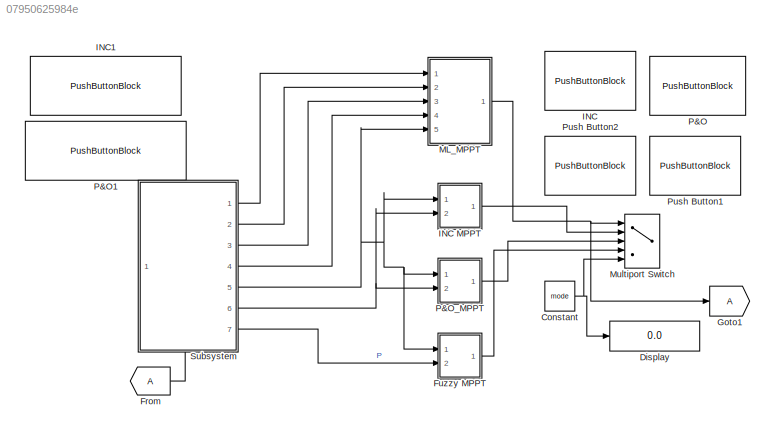
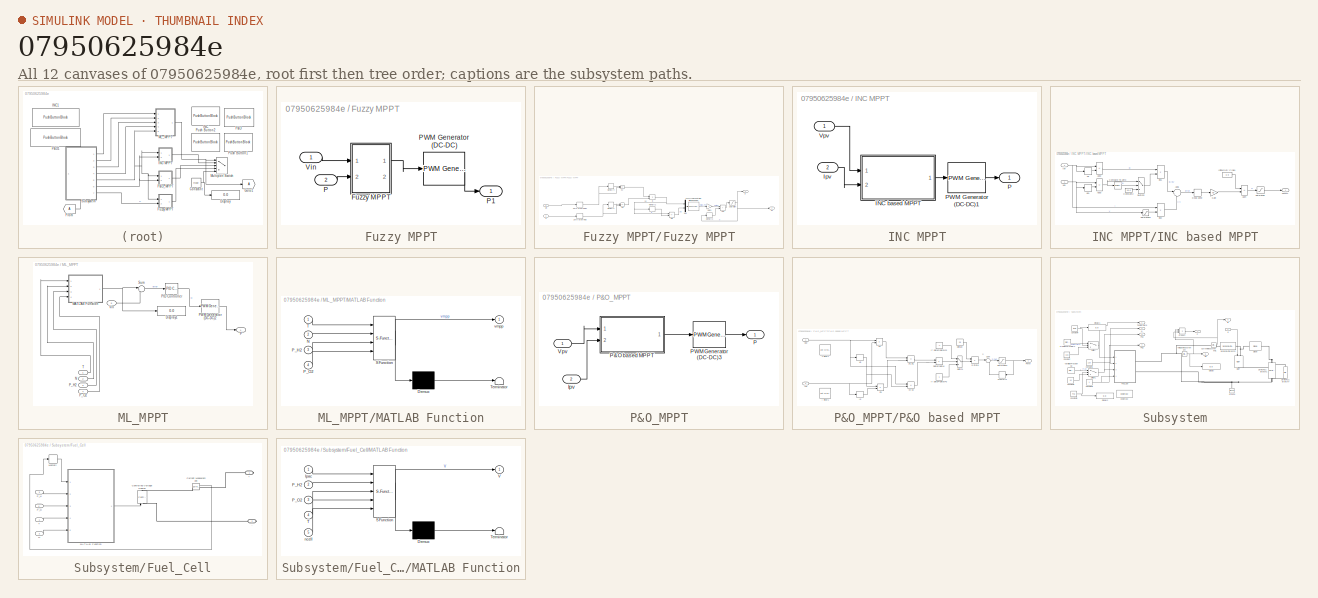
[diagram: thumbnail index - all 12 canvases of the model, root first then tree order]
MODEL slx_07950625984e
KIND model
CONFIG AbsTol = auto
CONFIG EnableMultiTasking = off
CONFIG FixedStep = 1e-4
CONFIG MaxStep = auto
CONFIG MinStep = auto
CONFIG RelTol = 1e-5
CONFIG SampleTimeConstraint = Unconstrained
CONFIG SolverName = FixedStepAuto
CONFIG StartTime = 0.0
CONFIG StopTime = 10
BLOCK [Constant] Constant
  Value = mode
BLOCK [Display] Display
  Decimation = 1
  Ports = [1]
BLOCK [From] From
BLOCK [SubSystem] Fuzzy MPPT
  Commented = on
  Ports = [2, 1]
BLOCK [SubSystem] Fuzzy MPPT/Fuzzy MPPT
  Ports = [2, 2]
BLOCK [Sum] Fuzzy MPPT/Fuzzy MPPT/Add
  IconShape = rectangular
  Ports = [2, 1]
BLOCK [Outport] Fuzzy MPPT/Fuzzy MPPT/D
BLOCK [Outport] Fuzzy MPPT/Fuzzy MPPT/D1
  Port = 2
BLOCK [Sum] Fuzzy MPPT/Fuzzy MPPT/DE
  IconShape = rectangular
  Inputs = -+
  Ports = [2, 1]
BLOCK [Product] Fuzzy MPPT/Fuzzy MPPT/E
  Inputs = /*
  NameLocation = top
  Ports = [2, 1]
BLOCK [Reference] Fuzzy MPPT/Fuzzy MPPT/Fuzzy Logic Controller with Ruleviewer  REF=fuzblock/Fuzzy Logic   (lib defined in mdl_858b3b3e7478)
Controller 
with Ruleviewer
  Ports = [1, 1]
  SourceBlock = fuzblock/Fuzzy Logic \nController \nwith Ruleviewer
  SourceType = Fuzzy Inference System
BLOCK [Gain] Fuzzy MPPT/Fuzzy MPPT/Gain1
BLOCK [Memory] Fuzzy MPPT/Fuzzy MPPT/Memory1
  InheritSampleTime = on
BLOCK [Memory] Fuzzy MPPT/Fuzzy MPPT/Memory2
  InheritSampleTime = on
BLOCK [Memory] Fuzzy MPPT/Fuzzy MPPT/Memory3
BLOCK [Memory] Fuzzy MPPT/Fuzzy MPPT/Memory4
  InheritSampleTime = on
BLOCK [Mux] Fuzzy MPPT/Fuzzy MPPT/Mux
  DisplayOption = bar
  Inputs = 2
  Ports = [2, 1]
BLOCK [Inport] Fuzzy MPPT/Fuzzy MPPT/P
  Port = 2
BLOCK [Saturate] Fuzzy MPPT/Fuzzy MPPT/Saturation
  LowerLimit = 0.1
  UpperLimit = 0.9
BLOCK [Inport] Fuzzy MPPT/Fuzzy MPPT/Vin
BLOCK [ZeroOrderHold] Fuzzy MPPT/Fuzzy MPPT/Zero-Order Hold
  SampleTime = -1
BLOCK [ZeroOrderHold] Fuzzy MPPT/Fuzzy MPPT/Zero-Order Hold1
  SampleTime = -1
BLOCK [Sum] Fuzzy MPPT/Fuzzy MPPT/dP
  IconShape = rectangular
  Inputs = -+
  Ports = [2, 1]
BLOCK [Sum] Fuzzy MPPT/Fuzzy MPPT/dV
  IconShape = rectangular
  Inputs = +-
  Ports = [2, 1]
BLOCK [Inport] Fuzzy MPPT/P
  Port = 2
BLOCK [Outport] Fuzzy MPPT/P1
BLOCK [Reference] Fuzzy MPPT/PWM Generator (DC-DC)  REF=powerlib_meascontrol/Pulse & Signal Generators/PWM Generator (DC-DC)
  Ports = [1, 1]
  SourceBlock = powerlib_meascontrol/Pulse & Signal Generators/PWM Generator (DC-DC)
  SourceType = PWM Generator (DC-DC)
BLOCK [Inport] Fuzzy MPPT/Vin
BLOCK [Goto] Goto1
BLOCK [PushButtonBlock] INC
  ButtonText = INC
  ButtonType = Latch
  LabelPosition = Bottom
  OffValue = 2.000000
  OnValue = 2
BLOCK [SubSystem] INC MPPT
  Commented = on
  Ports = [2, 1]
BLOCK [SubSystem] INC MPPT/INC based MPPT
  Ports = [2, 1]
BLOCK [Sum] INC MPPT/INC based MPPT/Add1
  Inputs = |++
  Ports = [2, 1]
BLOCK [Sum] INC MPPT/INC based MPPT/Add2
  IconShape = rectangular
  Inputs = +-
  Ports = [2, 1]
BLOCK [Sum] INC MPPT/INC based MPPT/Add3
  IconShape = rectangular
  Inputs = +-
  Ports = [2, 1]
BLOCK [Sum] INC MPPT/INC based MPPT/Add4
  IconShape = rectangular
  Inputs = +-
  Ports = [2, 1]
BLOCK [Reference] INC MPPT/INC based MPPT/Compare To Zero  REF=simulink/Logic and Bit
Operations/Compare
To Zero
  Ports = [1, 1]
  SourceBlock = simulink/Logic and Bit\nOperations/Compare\nTo Zero
  SourceType = Compare To Zero
BLOCK [Constant] INC MPPT/INC based MPPT/Constant2
  Value = 1e-6
BLOCK [DeadZone] INC MPPT/INC based MPPT/Dead Zone
  LowerValue = -0.02
  UpperValue = +0.02
BLOCK [Gain] INC MPPT/INC based MPPT/Gain
  Gain = 0.5
BLOCK [Constant] INC MPPT/INC based MPPT/Initial Duty Cycle1
  NameLocation = top
  Value = 0.9
BLOCK [Inport] INC MPPT/INC based MPPT/Ipv
  Port = 2
BLOCK [Outport] INC MPPT/INC based MPPT/PWM1
BLOCK [Saturate] INC MPPT/INC based MPPT/Saturation
  LowerLimit = 0.1
  UpperLimit = 0.9
BLOCK [Saturate] INC MPPT/INC based MPPT/Saturation1
  LowerLimit = eps
  UpperLimit = inf
BLOCK [Switch] INC MPPT/INC based MPPT/Switch2
  Criteria = u2 ~= 0
  InputSameDT = off
  SaturateOnIntegerOverflow = off
BLOCK [Memory] INC MPPT/INC based MPPT/Vb
  InheritSampleTime = on
  LinearizeAsDelay = on
BLOCK [Memory] INC MPPT/INC based MPPT/Vb1
  InheritSampleTime = on
  LinearizeAsDelay = on
BLOCK [Inport] INC MPPT/INC based MPPT/Vpv
BLOCK [Product] INC MPPT/INC based MPPT/div1
  Inputs = */
  Ports = [2, 1]
  RndMeth = Zero
BLOCK [Product] INC MPPT/INC based MPPT/div2
  Inputs = */
  Ports = [2, 1]
  RndMeth = Zero
BLOCK [Inport] INC MPPT/Ipv
  Port = 2
BLOCK [Outport] INC MPPT/P
BLOCK [Reference] INC MPPT/PWM Generator (DC-DC)1  REF=powerlib_meascontrol/Pulse & Signal Generators/PWM Generator (DC-DC)
  Ports = [1, 1]
  SourceBlock = powerlib_meascontrol/Pulse & Signal Generators/PWM Generator (DC-DC)
  SourceType = PWM Generator (DC-DC)
BLOCK [Inport] INC MPPT/Vpv
BLOCK [PushButtonBlock] INC1
  ButtonText = Variation temperature
  ButtonType = Latch
  LabelPosition = Bottom
  OffValue = 2.000000
BLOCK [SubSystem] ML_MPPT
  Ports = [5, 1]
BLOCK [Display] ML_MPPT/Display1
  Decimation = 1
  Ports = [1]
BLOCK [SubSystem] ML_MPPT/MATLAB Function
  ErrorFcn = Stateflow.Translate.translate
  PermitHierarchicalResolution = ExplicitOnly
  Ports = [4, 1]
  SFBlockType = MATLAB Function
  TreatAsAtomicUnit = on
BLOCK [Demux] ML_MPPT/MATLAB Function/ Demux 
  Outputs = 1
  Ports = [1, 1]
BLOCK [S-Function] ML_MPPT/MATLAB Function/ SFunction 
  EnableBusSupport = on
  FunctionName = sf_sfun
  PortCounts = [4 2]
  Ports = [4, 2]
  SFcnIsStateOwnerBlock = off
  SFunctionDeploymentMode = off
  Tag = Stateflow S-Function 2
BLOCK [Terminator] ML_MPPT/MATLAB Function/ Terminator 
BLOCK [Inport] ML_MPPT/MATLAB Function/N
  Port = 2
BLOCK [Inport] ML_MPPT/MATLAB Function/P_H2
  Port = 3
BLOCK [Inport] ML_MPPT/MATLAB Function/P_O2
  Port = 4
BLOCK [Inport] ML_MPPT/MATLAB Function/T
BLOCK [Outport] ML_MPPT/MATLAB Function/vmpp
BLOCK [Inport] ML_MPPT/N
  Port = 2
BLOCK [Outport] ML_MPPT/P
BLOCK [Reference] ML_MPPT/PID Controller  REF=pid_lib/PID Controller
  Ports = [1, 1]
  SourceBlock = pid_lib/PID Controller
  SourceType = PID 1dof
BLOCK [Reference] ML_MPPT/PWM Generator (DC-DC)2  REF=powerlib_meascontrol/Pulse & Signal Generators/PWM Generator (DC-DC)
  Ports = [1, 1]
  SourceBlock = powerlib_meascontrol/Pulse & Signal Generators/PWM Generator (DC-DC)
  SourceType = PWM Generator (DC-DC)
BLOCK [Inport] ML_MPPT/P_H2
  Port = 3
BLOCK [Inport] ML_MPPT/P_O2
  Port = 4
BLOCK [Sum] ML_MPPT/Sum
  Inputs = |+-
  Ports = [2, 1]
BLOCK [Inport] ML_MPPT/T
BLOCK [Inport] ML_MPPT/Vin
  Port = 5
BLOCK [MultiPortSwitch] Multiport Switch
  DiagnosticForDefault = None
  InputSameDT = off
  Inputs = 4
  Ports = [5, 1]
  SaturateOnIntegerOverflow = off
BLOCK [PushButtonBlock] P&O
  ButtonText = P&O
  LabelPosition = Bottom
  OffValue = 4.000000
  OnValue = 3
BLOCK [PushButtonBlock] P&O1
  ButtonText = Variation PH2
  ButtonType = Latch
  LabelPosition = Bottom
  OffValue = 3.000000
  OnValue = 2
BLOCK [SubSystem] P&O_MPPT
  Ports = [2, 1]
BLOCK [Inport] P&O_MPPT/Ipv
  Port = 2
BLOCK [Outport] P&O_MPPT/P
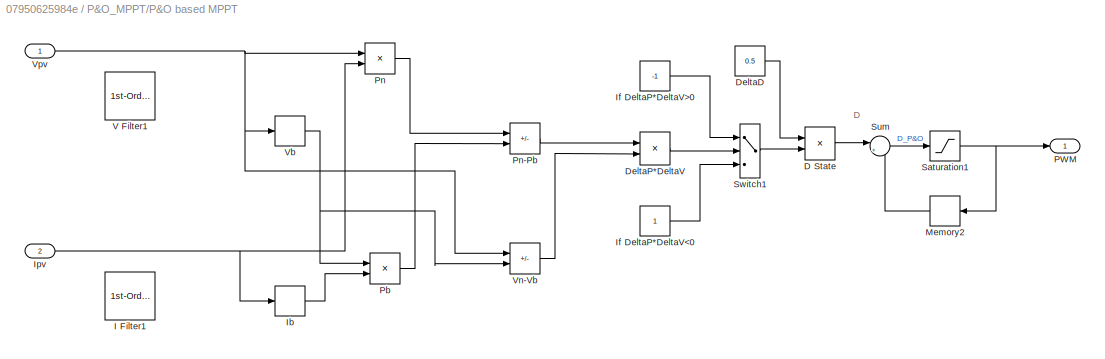
BLOCK [SubSystem] P&O_MPPT/P&O based MPPT
  Ports = [2, 1]
BLOCK [Product] P&O_MPPT/P&O based MPPT/D State
  Ports = [2, 1]
  RndMeth = Zero
BLOCK [Constant] P&O_MPPT/P&O based MPPT/DeltaD
  Value = 0.5
BLOCK [Product] P&O_MPPT/P&O based MPPT/DeltaP*DeltaV
  Ports = [2, 1]
  RndMeth = Zero
BLOCK [Reference] P&O_MPPT/P&O based MPPT/I Filter1  REF=powerlib_extras/Control 
Blocks/1st-Order 
Filter
  Ports = [1, 1]
  SourceBlock = powerlib_extras/Control \nBlocks/1st-Order \nFilter
  SourceType = First-Order Filter
BLOCK [Memory] P&O_MPPT/P&O based MPPT/Ib
  InheritSampleTime = on
  LinearizeAsDelay = on
BLOCK [Constant] P&O_MPPT/P&O based MPPT/If DeltaP*DeltaV<0
BLOCK [Constant] P&O_MPPT/P&O based MPPT/If DeltaP*DeltaV>0
  Value = -1
BLOCK [Inport] P&O_MPPT/P&O based MPPT/Ipv
  Port = 2
BLOCK [Memory] P&O_MPPT/P&O based MPPT/Memory2
  InheritSampleTime = on
  NameLocation = top
BLOCK [Outport] P&O_MPPT/P&O based MPPT/PWM
BLOCK [Product] P&O_MPPT/P&O based MPPT/Pb
  Ports = [2, 1]
  RndMeth = Zero
BLOCK [Product] P&O_MPPT/P&O based MPPT/Pn
  Ports = [2, 1]
  RndMeth = Zero
BLOCK [Sum] P&O_MPPT/P&O based MPPT/Pn-Pb
  IconShape = rectangular
  Inputs = +-
  Ports = [2, 1]
BLOCK [Saturate] P&O_MPPT/P&O based MPPT/Saturation1
  LowerLimit = 0.1
  UpperLimit = 0.9
BLOCK [Sum] P&O_MPPT/P&O based MPPT/Sum
  Inputs = |++
  Ports = [2, 1]
BLOCK [Switch] P&O_MPPT/P&O based MPPT/Switch1
  InputSameDT = off
  NameLocation = top
  SaturateOnIntegerOverflow = off
BLOCK [Reference] P&O_MPPT/P&O based MPPT/V Filter1  REF=powerlib_extras/Control 
Blocks/1st-Order 
Filter
  Ports = [1, 1]
  SourceBlock = powerlib_extras/Control \nBlocks/1st-Order \nFilter
  SourceType = First-Order Filter
BLOCK [Memory] P&O_MPPT/P&O based MPPT/Vb
  InheritSampleTime = on
  LinearizeAsDelay = on
BLOCK [Sum] P&O_MPPT/P&O based MPPT/Vn-Vb
  IconShape = rectangular
  Inputs = +-
  Ports = [2, 1]
BLOCK [Inport] P&O_MPPT/P&O based MPPT/Vpv
BLOCK [Reference] P&O_MPPT/PWM Generator (DC-DC)3  REF=powerlib_meascontrol/Pulse & Signal Generators/PWM Generator (DC-DC)
  Ports = [1, 1]
  SourceBlock = powerlib_meascontrol/Pulse & Signal Generators/PWM Generator (DC-DC)
  SourceType = PWM Generator (DC-DC)
BLOCK [Inport] P&O_MPPT/Vpv
BLOCK [PushButtonBlock] Push Button1
  ButtonText = ML
  ButtonType = Latch
  LabelPosition = Bottom
  OffValue = 4.000000
BLOCK [PushButtonBlock] Push Button2
  ButtonText = Fuzzy
  ButtonType = Latch
  LabelPosition = Bottom
  OffValue = 3.000000
  OnValue = 4
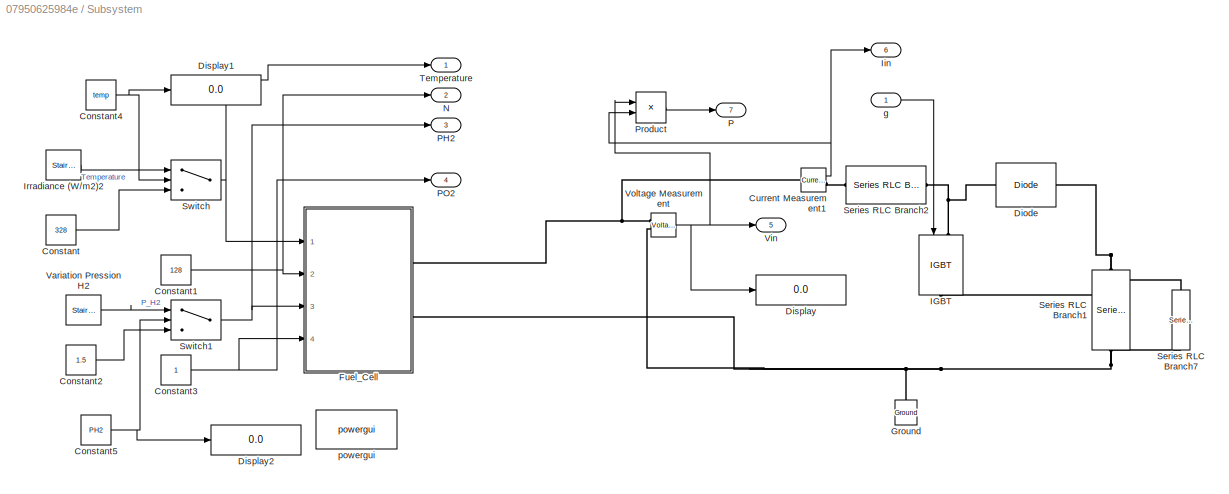
BLOCK [SubSystem] Subsystem
  PortSchema = {"entries":[{"content":{"sides":[{"content":{},"type":"ConnectorPlacement.EquallySpacedRectSide","uuid":"58a8bd94-ffd4-46b6-b1a3-2be376507ce2"},{"content":{"connectorIds":["Out1","Out2","Out3","Out4","Out5","Out6","Out7"],"side":"RIGHT"},"type":"ConnectorPlacement.EquallySpacedRectSide","uuid":"96ef2c66-1d4c-4d1d-b7e6-2b708ee2f518"},{"content":{"side":"TOP"},"type":"ConnectorPlacement.EquallySpace...<+391ch>
  Ports = [1, 7]
BLOCK [Constant] Subsystem/Constant
  Value = 328
BLOCK [Constant] Subsystem/Constant1
  Value = 128
BLOCK [Constant] Subsystem/Constant2
  Value = 1.5
BLOCK [Constant] Subsystem/Constant3
BLOCK [Constant] Subsystem/Constant4
  Value = temp
BLOCK [Constant] Subsystem/Constant5
  Value = PH2
BLOCK [Reference] Subsystem/Current Measurement1  REF=powerlib/Measurements/Current Measurement
  Ports = [0, 1, 0, 0, 0, 1, 1]
  SourceBlock = powerlib/Measurements/Current Measurement
  SourceType = Current Measurement
  UserDataPersistent = on
BLOCK [Reference] Subsystem/Diode  REF=powerlib/Power Electronics/Diode
  Ports = [0, 0, 0, 0, 0, 1, 1]
  SourceBlock = powerlib/Power Electronics/Diode
  SourceType = Diode
BLOCK [Display] Subsystem/Display
  Decimation = 1
  Ports = [1]
BLOCK [Display] Subsystem/Display1
  Decimation = 1
  Ports = [1]
BLOCK [Display] Subsystem/Display2
  Decimation = 1
  Ports = [1]
BLOCK [SubSystem] Subsystem/Fuel_Cell
  Ports = [4, 0, 0, 0, 0, 0, 2]
BLOCK [PMIOPort] Subsystem/Fuel_Cell/+
  NameLocation = top
  Side = Right
BLOCK [PMIOPort] Subsystem/Fuel_Cell/-
  NameLocation = top
  Port = 2
  Side = Right
BLOCK [Reference] Subsystem/Fuel_Cell/Controlled Voltage Source  REF=powerlib/Electrical Sources/Controlled Voltage Source
  NameLocation = right
  Ports = [1, 0, 0, 0, 0, 1, 1]
  SourceBlock = powerlib/Electrical Sources/Controlled Voltage Source
  SourceType = Controlled Voltage Source
BLOCK [Reference] Subsystem/Fuel_Cell/Current Measurement  REF=powerlib/Measurements/Current Measurement
  Ports = [0, 1, 0, 0, 0, 1, 1]
  SourceBlock = powerlib/Measurements/Current Measurement
  SourceType = Current Measurement
  UserDataPersistent = on
BLOCK [SubSystem] Subsystem/Fuel_Cell/MATLAB Function
  ErrorFcn = Stateflow.Translate.translate
  PermitHierarchicalResolution = ExplicitOnly
  Ports = [5, 1]
  SFBlockType = MATLAB Function
  TreatAsAtomicUnit = on
BLOCK [Demux] Subsystem/Fuel_Cell/MATLAB Function/ Demux 
  Outputs = 1
  Ports = [1, 1]
BLOCK [S-Function] Subsystem/Fuel_Cell/MATLAB Function/ SFunction 
  EnableBusSupport = on
  FunctionName = sf_sfun
  PortCounts = [5 2]
  Ports = [5, 2]
  SFcnIsStateOwnerBlock = off
  SFunctionDeploymentMode = off
  Tag = Stateflow S-Function 1
BLOCK [Terminator] Subsystem/Fuel_Cell/MATLAB Function/ Terminator 
BLOCK [Inport] Subsystem/Fuel_Cell/MATLAB Function/Ipac
BLOCK [Inport] Subsystem/Fuel_Cell/MATLAB Function/P_H2
  Port = 2
BLOCK [Inport] Subsystem/Fuel_Cell/MATLAB Function/P_O2
  Port = 3
BLOCK [Inport] Subsystem/Fuel_Cell/MATLAB Function/T
  Port = 4
BLOCK [Outport] Subsystem/Fuel_Cell/MATLAB Function/V
BLOCK [Inport] Subsystem/Fuel_Cell/MATLAB Function/ncell
  Port = 5
BLOCK [Memory] Subsystem/Fuel_Cell/Memory
  InheritSampleTime = on
  InitialCondition = 1e-4
BLOCK [Inport] Subsystem/Fuel_Cell/N
  Port = 2
BLOCK [Inport] Subsystem/Fuel_Cell/P_H
  Port = 3
BLOCK [Inport] Subsystem/Fuel_Cell/P_O
  Port = 4
BLOCK [Inport] Subsystem/Fuel_Cell/T
BLOCK [Reference] Subsystem/Ground  REF=powerlib/Elements/Ground
  NameLocation = right
  Ports = [0, 0, 0, 0, 0, 1]
  SourceBlock = powerlib/Elements/Ground
  SourceType = Ground
BLOCK [Reference] Subsystem/IGBT  REF=powerlib/Power Electronics/IGBT
  NameLocation = right
  Ports = [1, 0, 0, 0, 0, 1, 1]
  SourceBlock = powerlib/Power Electronics/IGBT
  SourceType = IGBT
BLOCK [Outport] Subsystem/Iin
  Port = 6
BLOCK [Reference] Subsystem/Irradiance (W//m2)2  REF=powerlib_meascontrol/Pulse & Signal Generators/Stair Generator
  NameLocation = top
  Ports = [0, 1]
  SourceBlock = powerlib_meascontrol/Pulse & Signal Generators/Stair Generator
  SourceType = Stair Generator
BLOCK [Outport] Subsystem/N
  Port = 2
BLOCK [Outport] Subsystem/P
  Port = 7
BLOCK [Outport] Subsystem/PH2
  Port = 3
BLOCK [Outport] Subsystem/PO2
  Port = 4
BLOCK [Product] Subsystem/Product
  Ports = [2, 1]
BLOCK [Reference] Subsystem/Series RLC Branch1  REF=powerlib/Elements/Series RLC Branch
  NameLocation = left
  Ports = [0, 0, 0, 0, 0, 1, 1]
  SourceBlock = powerlib/Elements/Series RLC Branch
  SourceType = Series RLC Branch
BLOCK [Reference] Subsystem/Series RLC Branch2  REF=powerlib/Elements/Series RLC Branch
  Ports = [0, 0, 0, 0, 0, 1, 1]
  SourceBlock = powerlib/Elements/Series RLC Branch
  SourceType = Series RLC Branch
BLOCK [Reference] Subsystem/Series RLC Branch7  REF=powerlib/Elements/Series RLC Branch
  NameLocation = left
  Ports = [0, 0, 0, 0, 0, 1, 1]
  SourceBlock = powerlib/Elements/Series RLC Branch
  SourceType = Series RLC Branch
BLOCK [Switch] Subsystem/Switch
  InputSameDT = off
  SaturateOnIntegerOverflow = off
BLOCK [Switch] Subsystem/Switch1
  InputSameDT = off
  SaturateOnIntegerOverflow = off
BLOCK [Outport] Subsystem/Temperature
BLOCK [Reference] Subsystem/Variation Pression H2  REF=powerlib_meascontrol/Pulse & Signal Generators/Stair Generator
  NameLocation = top
  Ports = [0, 1]
  SourceBlock = powerlib_meascontrol/Pulse & Signal Generators/Stair Generator
  SourceType = Stair Generator
BLOCK [Outport] Subsystem/Vin
  Port = 5
BLOCK [Reference] Subsystem/Voltage Measurement  REF=powerlib/Measurements/Voltage Measurement
  Ports = [0, 1, 0, 0, 0, 2]
  SourceBlock = powerlib/Measurements/Voltage Measurement
  SourceType = Voltage Measurement
  UserDataPersistent = on
BLOCK [Inport] Subsystem/g
BLOCK [Reference] Subsystem/powergui  REF=powerlib/powergui
  Ports = []
  Priority = 1
  SourceBlock = powerlib/powergui
  SourceType = PSB option menu block
ANNOTATION Fuzzy MPPT/Fuzzy MPPT: DE
ANNOTATION P&O_MPPT/P&O based MPPT: D
NET Constant:1 -> Display:1, Multiport Switch:5
LINE From:1 -> Subsystem:1
LINE Fuzzy MPPT/Fuzzy MPPT/Add:1 -> Fuzzy MPPT/Fuzzy MPPT/Saturation:1
LINE Fuzzy MPPT/Fuzzy MPPT/DE:1 -> Fuzzy MPPT/Fuzzy MPPT/Mux:2
NET Fuzzy MPPT/Fuzzy MPPT/E:1 -> Fuzzy MPPT/Fuzzy MPPT/DE:1, Fuzzy MPPT/Fuzzy MPPT/Memory2:1, Fuzzy MPPT/Fuzzy MPPT/Mux:1
LINE Fuzzy MPPT/Fuzzy MPPT/Fuzzy Logic Controller with Ruleviewer:1 -> Fuzzy MPPT/Fuzzy MPPT/Gain1:1
LINE Fuzzy MPPT/Fuzzy MPPT/Gain1:1 -> Fuzzy MPPT/Fuzzy MPPT/Add:1
LINE Fuzzy MPPT/Fuzzy MPPT/Memory1:1 -> Fuzzy MPPT/Fuzzy MPPT/dP:1
LINE Fuzzy MPPT/Fuzzy MPPT/Memory2:1 -> Fuzzy MPPT/Fuzzy MPPT/DE:2
LINE Fuzzy MPPT/Fuzzy MPPT/Memory3:1 -> Fuzzy MPPT/Fuzzy MPPT/Add:2
LINE Fuzzy MPPT/Fuzzy MPPT/Memory4:1 -> Fuzzy MPPT/Fuzzy MPPT/dV:1
LINE Fuzzy MPPT/Fuzzy MPPT/Mux:1 -> Fuzzy MPPT/Fuzzy MPPT/Fuzzy Logic Controller with Ruleviewer:1
LINE Fuzzy MPPT/Fuzzy MPPT/P:1 -> Fuzzy MPPT/Fuzzy MPPT/Zero-Order Hold:1
NET Fuzzy MPPT/Fuzzy MPPT/Saturation:1 -> Fuzzy MPPT/Fuzzy MPPT/D1:1, Fuzzy MPPT/Fuzzy MPPT/D:1, Fuzzy MPPT/Fuzzy MPPT/Memory3:1
LINE Fuzzy MPPT/Fuzzy MPPT/Vin:1 -> Fuzzy MPPT/Fuzzy MPPT/Zero-Order Hold1:1
NET Fuzzy MPPT/Fuzzy MPPT/Zero-Order Hold1:1 -> Fuzzy MPPT/Fuzzy MPPT/Memory4:1, Fuzzy MPPT/Fuzzy MPPT/dV:2
NET Fuzzy MPPT/Fuzzy MPPT/Zero-Order Hold:1 -> Fuzzy MPPT/Fuzzy MPPT/Memory1:1, Fuzzy MPPT/Fuzzy MPPT/dP:2
LINE Fuzzy MPPT/Fuzzy MPPT/dP:1 -> Fuzzy MPPT/Fuzzy MPPT/E:2
LINE Fuzzy MPPT/Fuzzy MPPT/dV:1 -> Fuzzy MPPT/Fuzzy MPPT/E:1
LINE Fuzzy MPPT/Fuzzy MPPT:1 -> Fuzzy MPPT/PWM Generator (DC-DC):1
LINE Fuzzy MPPT/P:1 -> Fuzzy MPPT/Fuzzy MPPT:2
LINE Fuzzy MPPT/PWM Generator (DC-DC):1 -> Fuzzy MPPT/P1:1
LINE Fuzzy MPPT/Vin:1 -> Fuzzy MPPT/Fuzzy MPPT:1
LINE Fuzzy MPPT:1 -> Multiport Switch:4
LINE INC MPPT/INC based MPPT/Add1:1 -> INC MPPT/INC based MPPT/Dead Zone:1
LINE INC MPPT/INC based MPPT/Add2:1 -> INC MPPT/INC based MPPT/div1:1
NET INC MPPT/INC based MPPT/Add3:1 -> INC MPPT/INC based MPPT/Compare To Zero:1, INC MPPT/INC based MPPT/Switch2:1
LINE INC MPPT/INC based MPPT/Add4:1 -> INC MPPT/INC based MPPT/Saturation:1
LINE INC MPPT/INC based MPPT/Compare To Zero:1 -> INC MPPT/INC based MPPT/Switch2:2
LINE INC MPPT/INC based MPPT/Constant2:1 -> INC MPPT/INC based MPPT/Switch2:3
LINE INC MPPT/INC based MPPT/Dead Zone:1 -> INC MPPT/INC based MPPT/Gain:1
LINE INC MPPT/INC based MPPT/Gain:1 -> INC MPPT/INC based MPPT/Add4:2
LINE INC MPPT/INC based MPPT/Initial Duty Cycle1:1 -> INC MPPT/INC based MPPT/Add4:1
NET INC MPPT/INC based MPPT/Ipv:1 -> INC MPPT/INC based MPPT/Add2:1, INC MPPT/INC based MPPT/Vb:1, INC MPPT/INC based MPPT/div2:1
LINE INC MPPT/INC based MPPT/Saturation1:1 -> INC MPPT/INC based MPPT/div2:2
LINE INC MPPT/INC based MPPT/Saturation:1 -> INC MPPT/INC based MPPT/PWM1:1
LINE INC MPPT/INC based MPPT/Switch2:1 -> INC MPPT/INC based MPPT/div1:2
LINE INC MPPT/INC based MPPT/Vb1:1 -> INC MPPT/INC based MPPT/Add3:2
LINE INC MPPT/INC based MPPT/Vb:1 -> INC MPPT/INC based MPPT/Add2:2
NET INC MPPT/INC based MPPT/Vpv:1 -> INC MPPT/INC based MPPT/Add3:1, INC MPPT/INC based MPPT/Saturation1:1, INC MPPT/INC based MPPT/Vb1:1
LINE INC MPPT/INC based MPPT/div1:1 -> INC MPPT/INC based MPPT/Add1:1
LINE INC MPPT/INC based MPPT/div2:1 -> INC MPPT/INC based MPPT/Add1:2
LINE INC MPPT/INC based MPPT:1 -> INC MPPT/PWM Generator (DC-DC)1:1
LINE INC MPPT/Ipv:1 -> INC MPPT/INC based MPPT:2
LINE INC MPPT/PWM Generator (DC-DC)1:1 -> INC MPPT/P:1
LINE INC MPPT/Vpv:1 -> INC MPPT/INC based MPPT:1
LINE INC MPPT:1 -> Multiport Switch:2
NET ML_MPPT/MATLAB Function:1 -> ML_MPPT/Display1:1, ML_MPPT/Sum:1
LINE ML_MPPT/N:1 -> ML_MPPT/MATLAB Function:2
LINE ML_MPPT/PID Controller:1 -> ML_MPPT/PWM Generator (DC-DC)2:1
LINE ML_MPPT/PWM Generator (DC-DC)2:1 -> ML_MPPT/P:1
LINE ML_MPPT/P_H2:1 -> ML_MPPT/MATLAB Function:3
LINE ML_MPPT/P_O2:1 -> ML_MPPT/MATLAB Function:4
LINE ML_MPPT/Sum:1 -> ML_MPPT/PID Controller:1
LINE ML_MPPT/T:1 -> ML_MPPT/MATLAB Function:1
LINE ML_MPPT/Vin:1 -> ML_MPPT/Sum:2
NET ML_MPPT:1 -> Goto1:1, Multiport Switch:1
LINE P&O_MPPT/Ipv:1 -> P&O_MPPT/P&O based MPPT:2
LINE P&O_MPPT/P&O based MPPT/D State:1 -> P&O_MPPT/P&O based MPPT/Sum:1
LINE P&O_MPPT/P&O based MPPT/DeltaD:1 -> P&O_MPPT/P&O based MPPT/D State:1
LINE P&O_MPPT/P&O based MPPT/DeltaP*DeltaV:1 -> P&O_MPPT/P&O based MPPT/Switch1:2
LINE P&O_MPPT/P&O based MPPT/Ib:1 -> P&O_MPPT/P&O based MPPT/Pb:2
LINE P&O_MPPT/P&O based MPPT/If DeltaP*DeltaV<0:1 -> P&O_MPPT/P&O based MPPT/Switch1:3
LINE P&O_MPPT/P&O based MPPT/If DeltaP*DeltaV>0:1 -> P&O_MPPT/P&O based MPPT/Switch1:1
NET P&O_MPPT/P&O based MPPT/Ipv:1 -> P&O_MPPT/P&O based MPPT/Ib:1, P&O_MPPT/P&O based MPPT/Pn:2
LINE P&O_MPPT/P&O based MPPT/Memory2:1 -> P&O_MPPT/P&O based MPPT/Sum:2
LINE P&O_MPPT/P&O based MPPT/Pb:1 -> P&O_MPPT/P&O based MPPT/Pn-Pb:2
LINE P&O_MPPT/P&O based MPPT/Pn-Pb:1 -> P&O_MPPT/P&O based MPPT/DeltaP*DeltaV:1
LINE P&O_MPPT/P&O based MPPT/Pn:1 -> P&O_MPPT/P&O based MPPT/Pn-Pb:1
NET P&O_MPPT/P&O based MPPT/Saturation1:1 -> P&O_MPPT/P&O based MPPT/Memory2:1, P&O_MPPT/P&O based MPPT/PWM:1
LINE P&O_MPPT/P&O based MPPT/Sum:1 -> P&O_MPPT/P&O based MPPT/Saturation1:1
LINE P&O_MPPT/P&O based MPPT/Switch1:1 -> P&O_MPPT/P&O based MPPT/D State:2
NET P&O_MPPT/P&O based MPPT/Vb:1 -> P&O_MPPT/P&O based MPPT/Pb:1, P&O_MPPT/P&O based MPPT/Vn-Vb:2
LINE P&O_MPPT/P&O based MPPT/Vn-Vb:1 -> P&O_MPPT/P&O based MPPT/DeltaP*DeltaV:2
NET P&O_MPPT/P&O based MPPT/Vpv:1 -> P&O_MPPT/P&O based MPPT/Pn:1, P&O_MPPT/P&O based MPPT/Vb:1, P&O_MPPT/P&O based MPPT/Vn-Vb:1
LINE P&O_MPPT/P&O based MPPT:1 -> P&O_MPPT/PWM Generator (DC-DC)3:1
LINE P&O_MPPT/PWM Generator (DC-DC)3:1 -> P&O_MPPT/P:1
LINE P&O_MPPT/Vpv:1 -> P&O_MPPT/P&O based MPPT:1
LINE P&O_MPPT:1 -> Multiport Switch:3
NET Subsystem/Constant1:1 -> Subsystem/Fuel_Cell:2, Subsystem/N:1
LINE Subsystem/Constant2:1 -> Subsystem/Switch1:3
NET Subsystem/Constant3:1 -> Subsystem/Fuel_Cell:4, Subsystem/PO2:1
NET Subsystem/Constant4:1 -> Subsystem/Display1:1, Subsystem/Switch:2
NET Subsystem/Constant5:1 -> Subsystem/Display2:1, Subsystem/Switch1:2
LINE Subsystem/Constant:1 -> Subsystem/Switch:3
NET Subsystem/Current Measurement1:1 -> Subsystem/Iin:1, Subsystem/Product:2
LINE Subsystem/Fuel_Cell/Current Measurement:1 -> Subsystem/Fuel_Cell/Memory:1
LINE Subsystem/Fuel_Cell/MATLAB Function:1 -> Subsystem/Fuel_Cell/Controlled Voltage Source:1
LINE Subsystem/Fuel_Cell/Memory:1 -> Subsystem/Fuel_Cell/MATLAB Function:1
LINE Subsystem/Fuel_Cell/N:1 -> Subsystem/Fuel_Cell/MATLAB Function:5
LINE Subsystem/Fuel_Cell/P_H:1 -> Subsystem/Fuel_Cell/MATLAB Function:2
LINE Subsystem/Fuel_Cell/P_O:1 -> Subsystem/Fuel_Cell/MATLAB Function:3
LINE Subsystem/Fuel_Cell/T:1 -> Subsystem/Fuel_Cell/MATLAB Function:4
LINE Subsystem/Irradiance (W//m2)2:1 -> Subsystem/Switch:1
LINE Subsystem/Product:1 -> Subsystem/P:1
NET Subsystem/Switch1:1 -> Subsystem/Fuel_Cell:3, Subsystem/PH2:1
NET Subsystem/Switch:1 -> Subsystem/Fuel_Cell:1, Subsystem/Temperature:1
LINE Subsystem/Variation Pression H2:1 -> Subsystem/Switch1:1
NET Subsystem/Voltage Measurement:1 -> Subsystem/Display:1, Subsystem/Product:1, Subsystem/Vin:1
LINE Subsystem/g:1 -> Subsystem/IGBT:1
LINE Subsystem:1 -> ML_MPPT:1
LINE Subsystem:2 -> ML_MPPT:2
LINE Subsystem:3 -> ML_MPPT:3
LINE Subsystem:4 -> ML_MPPT:4
NET Subsystem:5 -> Fuzzy MPPT:1, INC MPPT:1, ML_MPPT:5, P&O_MPPT:1
NET Subsystem:6 -> INC MPPT:2, P&O_MPPT:2
LINE Subsystem:7 -> Fuzzy MPPT:2
PNET net1: Subsystem/Current Measurement1:LConn1 -- Subsystem/Fuel_Cell:RConn1 -- Subsystem/Voltage Measurement:LConn1
PLINE Subsystem/Current Measurement1:RConn1 -- Subsystem/Series RLC Branch2:LConn1
PNET net2: Subsystem/Diode:LConn1 -- Subsystem/IGBT:LConn1 -- Subsystem/Series RLC Branch2:RConn1
PNET net3: Subsystem/Diode:RConn1 -- Subsystem/Series RLC Branch1:LConn1 -- Subsystem/Series RLC Branch7:LConn1
PLINE Subsystem/Fuel_Cell/+:RConn1 -- Subsystem/Fuel_Cell/Current Measurement:RConn1
PLINE Subsystem/Fuel_Cell/-:RConn1 -- Subsystem/Fuel_Cell/Controlled Voltage Source:LConn1
PLINE Subsystem/Fuel_Cell/Controlled Voltage Source:RConn1 -- Subsystem/Fuel_Cell/Current Measurement:LConn1
PNET net4: Subsystem/Fuel_Cell:RConn2 -- Subsystem/Ground:LConn1 -- Subsystem/IGBT:RConn1 -- Subsystem/Series RLC Branch1:RConn1 -- Subsystem/Series RLC Branch7:RConn1 -- Subsystem/Voltage Measurement:LConn2
note: NET lines group one-source signal fan-out (src -> all destinations, sorted); 1:1 wires keep LINE; PNET lines group multi-terminal physical nets as a canonical sorted terminal list (undirected conserving connections); 2-terminal nets keep the pairwise PLINE form
CHART Subsystem/Fuel_Cell/MATLAB Function states=1 transitions=1
  STATE_LABEL 'eML_blk_kernel()'
  STATE_LABEL "SCRIPT:\nfunction V  =Fuel_Cell(Ipac,P_H2,P_O2,T,ncell) \n%% l'equation de nernest :\nA=70;% la surface active de la pile \nx1=P_H2;\nx2=P_O2;\nEnernst=1.229-(0.85e-3)*(T-298.15)+(4.31e-5*T*(ln(P_H2)-0.5*ln(P_O2)));\n%% voltage d'activation :\n C_H2=P_H2/(1.1*10.^(6)* exp(-77/T));\nx3=C_H2;\nC_O2= P_O2/(5.08.*10.^(5).*exp((-498)/T));\nx4=C_O2;\nk1=-0.514;\nx7=A;\n% k2= 0.00286+(0.0002*ln(A))+(4.3ln*(CH2)*10.^(5...<+703ch>"
CHART ML_MPPT/MATLAB Function states=1 transitions=1
  STATE_LABEL 'eML_blk_kernel()'
  STATE_LABEL 'SCRIPT:\nfunction vmpp = fcn(T, N,P_H2, P_O2)\n    vmpp = N*(predict_vmpp_matlab_model(T, P_H2, P_O2) - 0.703125);\nend'
CHART  states=0 transitions=0
CHART  states=0 transitions=0
